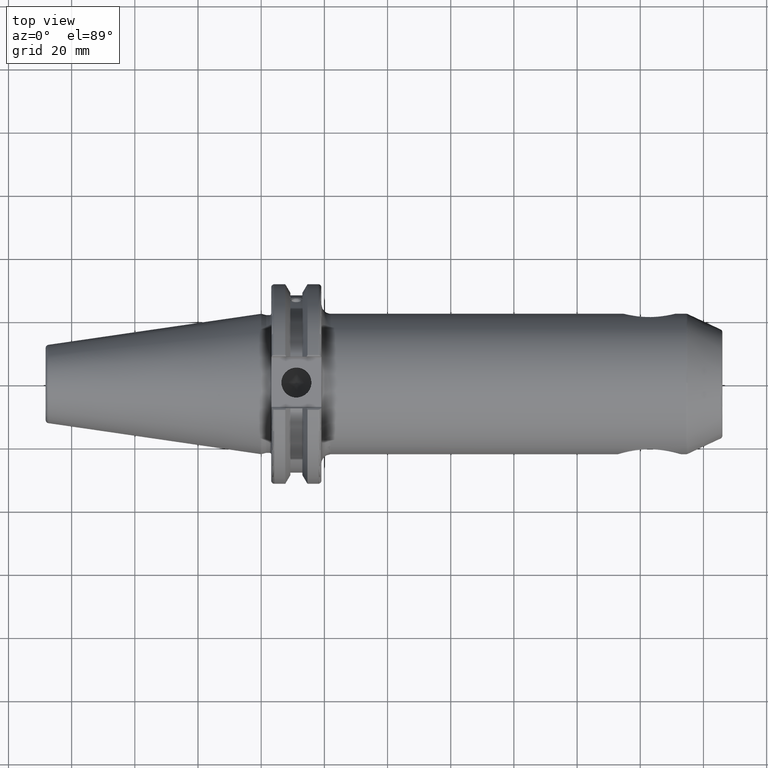
[diagram: clean part render]
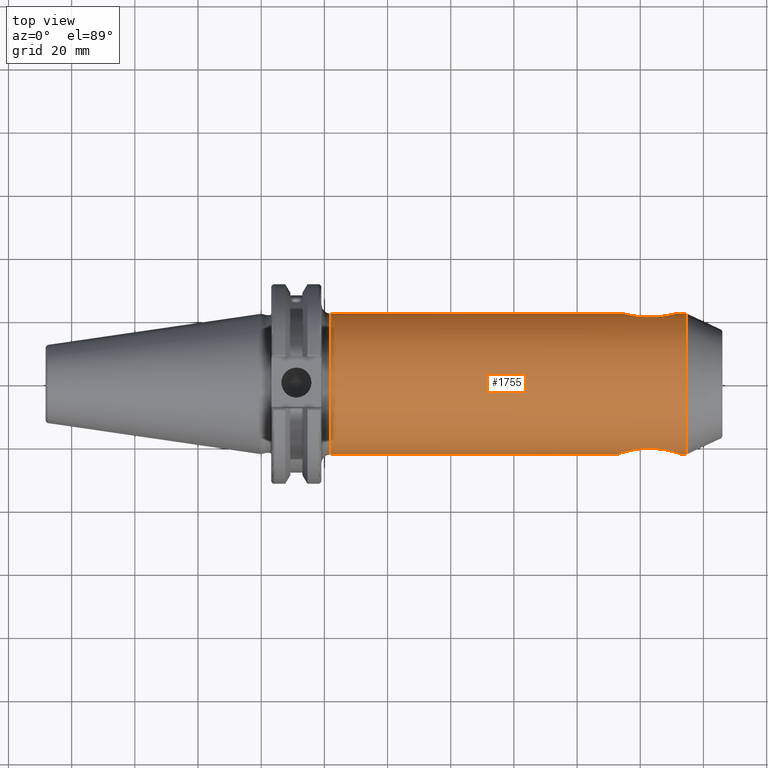
[diagram: same view with one face highlighted and labeled with its STEP entity id]
A machine part, top view. The second image highlights one B-rep face of the part: STEP entity #1755.
In plain terms, the highlighted cylindrical surface (bore or boss wall) has radius 22.225 mm, axis along (1, 0, 0).
Its self-contained STEP definition (entity closure, byte-faithful):
#51=FACE_BOUND('',#557,.T.);
#92=LINE('',#2820,#183);
#93=LINE('',#2822,#184);
#183=VECTOR('',#2162,22.225);
#184=VECTOR('',#2163,22.225);
#272=CYLINDRICAL_SURFACE('',#1893,22.225);
#322=CIRCLE('',#1890,22.225);
#323=CIRCLE('',#1891,22.225);
#324=CIRCLE('',#1892,22.225);
#325=CIRCLE('',#1894,22.225);
#326=CIRCLE('',#1895,22.225);
#327=CIRCLE('',#1896,22.225);
#463=FACE_OUTER_BOUND('',#556,.T.);
#556=EDGE_LOOP('',(#1243,#1244,#1245,#1246,#1247,#1248,#1249,#1250,#1251,
#1252,#1253,#1254,#1255));
#557=EDGE_LOOP('',(#1256,#1257));
#651=B_SPLINE_CURVE_WITH_KNOTS('',3,(#2621,#2622,#2623,#2624,#2625,#2626,
#2627,#2628,#2629,#2630,#2631,#2632,#2633,#2634),.UNSPECIFIED.,.F.,.F.,
(4,2,2,2,2,2,4),(0.,0.251022335495543,0.502044670991086,0.753067006486629,
1.00408934198217,1.21360063972312,1.42311193746407),.UNSPECIFIED.);
#652=B_SPLINE_CURVE_WITH_KNOTS('',3,(#2636,#2637,#2638,#2639,#2640,#2641,
#2642,#2643,#2644,#2645,#2646,#2647,#2648,#2649),.UNSPECIFIED.,.F.,.F.,
(4,2,2,2,2,2,4),(4.2693358123922,4.47884711013315,4.6883584078741,4.93938074336964,
5.19040307886519,5.44142541436073,5.69244774985627),.UNSPECIFIED.);
#653=B_SPLINE_CURVE_WITH_KNOTS('',3,(#2650,#2651,#2652,#2653,#2654,#2655,
#2656,#2657,#2658,#2659,#2660,#2661,#2662,#2663,#2664,#2665,#2666,#2667,
#2668,#2669,#2670,#2671,#2672,#2673,#2674,#2675),.UNSPECIFIED.,.F.,.F.,
(4,2,2,2,2,2,2,2,2,2,2,2,4),(1.42311193746407,1.63262323520502,1.84213453294596,
2.09315686844151,2.34417920393705,2.59520153943259,2.84622387492814,3.09724621042368,
3.34826854591922,3.59929088141477,3.85031321691031,4.05982451465126,4.2693358123922),
 .UNSPECIFIED.);
#656=B_SPLINE_CURVE_WITH_KNOTS('',3,(#2736,#2737,#2738,#2739,#2740,#2741,
#2742,#2743,#2744,#2745,#2746,#2747,#2748,#2749,#2750,#2751,#2752,#2753,
#2754,#2755,#2756,#2757,#2758,#2759,#2760,#2761),.UNSPECIFIED.,.F.,.F.,
(4,2,2,2,2,2,2,2,2,2,2,2,4),(0.,0.285706651693722,0.571413303387444,0.868206131903916,
1.16499896042039,1.46179178893686,1.75858461745333,2.04429126914705,2.32999792084078,
2.6157045725345,2.90141122422822,3.19820405274469,3.49499688126116),
 .UNSPECIFIED.);
#657=B_SPLINE_CURVE_WITH_KNOTS('',3,(#2762,#2763,#2764,#2765,#2766,#2767,
#2768,#2769,#2770,#2771),.UNSPECIFIED.,.F.,.F.,(4,2,2,2,4),(3.49499688126116,
3.79178970977764,4.08858253829411,4.37428918998783,4.65999584168155),
 .UNSPECIFIED.);
#695=VERTEX_POINT('',#2619);
#696=VERTEX_POINT('',#2620);
#697=VERTEX_POINT('',#2635);
#704=VERTEX_POINT('',#2733);
#705=VERTEX_POINT('',#2735);
#721=VERTEX_POINT('',#2812);
#722=VERTEX_POINT('',#2814);
#723=VERTEX_POINT('',#2816);
#724=VERTEX_POINT('',#2821);
#725=VERTEX_POINT('',#2823);
#726=VERTEX_POINT('',#2825);
#894=EDGE_CURVE('',#695,#696,#651,.T.);
#895=EDGE_CURVE('',#697,#695,#652,.T.);
#896=EDGE_CURVE('',#696,#697,#653,.T.);
#907=EDGE_CURVE('',#705,#704,#656,.T.);
#908=EDGE_CURVE('',#704,#705,#657,.T.);
#929=EDGE_CURVE('',#721,#722,#322,.T.);
#930=EDGE_CURVE('',#722,#723,#323,.T.);
#931=EDGE_CURVE('',#723,#721,#324,.T.);
#932=EDGE_CURVE('',#722,#697,#92,.T.);
#933=EDGE_CURVE('',#696,#724,#93,.T.);
#934=EDGE_CURVE('',#725,#724,#325,.T.);
#935=EDGE_CURVE('',#726,#725,#326,.T.);
#936=EDGE_CURVE('',#724,#726,#327,.T.);
#1243=ORIENTED_EDGE('',*,*,#931,.F.);
#1244=ORIENTED_EDGE('',*,*,#930,.F.);
#1245=ORIENTED_EDGE('',*,*,#932,.T.);
#1246=ORIENTED_EDGE('',*,*,#895,.T.);
#1247=ORIENTED_EDGE('',*,*,#894,.T.);
#1248=ORIENTED_EDGE('',*,*,#933,.T.);
#1249=ORIENTED_EDGE('',*,*,#934,.F.);
#1250=ORIENTED_EDGE('',*,*,#935,.F.);
#1251=ORIENTED_EDGE('',*,*,#936,.F.);
#1252=ORIENTED_EDGE('',*,*,#933,.F.);
#1253=ORIENTED_EDGE('',*,*,#896,.T.);
#1254=ORIENTED_EDGE('',*,*,#932,.F.);
#1255=ORIENTED_EDGE('',*,*,#929,.F.);
#1256=ORIENTED_EDGE('',*,*,#907,.T.);
#1257=ORIENTED_EDGE('',*,*,#908,.T.);
#1755=ADVANCED_FACE('',(#463,#51),#272,.T.);
#1890=AXIS2_PLACEMENT_3D('',#2815,#2154,#2155);
#1891=AXIS2_PLACEMENT_3D('',#2817,#2156,#2157);
#1892=AXIS2_PLACEMENT_3D('',#2818,#2158,#2159);
#1893=AXIS2_PLACEMENT_3D('',#2819,#2160,#2161);
#1894=AXIS2_PLACEMENT_3D('',#2824,#2164,#2165);
#1895=AXIS2_PLACEMENT_3D('',#2826,#2166,#2167);
#1896=AXIS2_PLACEMENT_3D('',#2827,#2168,#2169);
#2154=DIRECTION('center_axis',(1.,0.,0.));
#2155=DIRECTION('ref_axis',(0.,-1.,1.83697019872103E-16));
#2156=DIRECTION('center_axis',(1.,0.,0.));
#2157=DIRECTION('ref_axis',(0.,-1.,1.83697019872103E-16));
#2158=DIRECTION('center_axis',(1.,0.,0.));
#2159=DIRECTION('ref_axis',(0.,-1.,1.83697019872103E-16));
#2160=DIRECTION('center_axis',(1.,0.,0.));
#2161=DIRECTION('ref_axis',(0.,1.,0.));
#2162=DIRECTION('',(-1.,0.,0.));
#2163=DIRECTION('',(-1.,0.,0.));
#2164=DIRECTION('center_axis',(-1.,0.,0.));
#2165=DIRECTION('ref_axis',(0.,-1.,-1.22464679914735E-16));
#2166=DIRECTION('center_axis',(-1.,0.,0.));
#2167=DIRECTION('ref_axis',(0.,-1.,-1.22464679914735E-16));
#2168=DIRECTION('center_axis',(-1.,0.,0.));
#2169=DIRECTION('ref_axis',(0.,-1.,-1.22464679914735E-16));
#2619=CARTESIAN_POINT('',(122.9,-20.5429142136249,-8.48170387431961));
#2620=CARTESIAN_POINT('',(112.9,-22.225,-3.02622329249023E-15));
#2621=CARTESIAN_POINT('Ctrl Pts',(122.9,-20.5429142136249,-8.48170387431961));
#2622=CARTESIAN_POINT('Ctrl Pts',(122.063258881682,-20.5429142136249,-8.48170387431961));
#2623=CARTESIAN_POINT('Ctrl Pts',(121.20323399114,-20.5793750899531,-8.39511661671729));
#2624=CARTESIAN_POINT('Ctrl Pts',(119.516324699227,-20.7235339420118,-8.03267098530732));
#2625=CARTESIAN_POINT('Ctrl Pts',(118.689402666585,-20.8310615424678,-7.75692002051757));
#2626=CARTESIAN_POINT('Ctrl Pts',(117.141814343029,-21.0905670050855,-7.0207509706169));
#2627=CARTESIAN_POINT('Ctrl Pts',(116.41982271821,-21.2424011055724,-6.55977327389368));
#2628=CARTESIAN_POINT('Ctrl Pts',(115.14200928808,-21.5484351250174,-5.47130459497775));
#2629=CARTESIAN_POINT('Ctrl Pts',(114.586027935836,-21.7022357241486,-4.843888684673));
#2630=CARTESIAN_POINT('Ctrl Pts',(113.764596777771,-21.9443598669959,-3.56984161148491));
#2631=CARTESIAN_POINT('Ctrl Pts',(113.437021880634,-22.0484008786661,-2.88770634190615));
#2632=CARTESIAN_POINT('Ctrl Pts',(113.004510308275,-22.1892381120218,-1.45208588003658));
#2633=CARTESIAN_POINT('Ctrl Pts',(112.9,-22.225,-0.69837099246983));
#2634=CARTESIAN_POINT('Ctrl Pts',(112.9,-22.225,-3.33066907387547E-15));
#2635=CARTESIAN_POINT('',(132.9,-22.225,-3.02622329249023E-15));
#2636=CARTESIAN_POINT('Ctrl Pts',(132.9,-22.225,-2.77555756156289E-15));
#2637=CARTESIAN_POINT('Ctrl Pts',(132.9,-22.225,-0.698370992469828));
#2638=CARTESIAN_POINT('Ctrl Pts',(132.795489691725,-22.1892381120218,-1.45208588003657));
#2639=CARTESIAN_POINT('Ctrl Pts',(132.362978119366,-22.0484008786661,-2.88770634190615));
#2640=CARTESIAN_POINT('Ctrl Pts',(132.035403222229,-21.9443598669959,-3.56984161148491));
#2641=CARTESIAN_POINT('Ctrl Pts',(131.213972064164,-21.7022357241486,-4.843888684673));
#2642=CARTESIAN_POINT('Ctrl Pts',(130.65799071192,-21.5484351250174,-5.47130459497775));
#2643=CARTESIAN_POINT('Ctrl Pts',(129.38017728179,-21.2424011055724,-6.55977327389369));
#2644=CARTESIAN_POINT('Ctrl Pts',(128.658185656971,-21.0905670050855,-7.02075097061689));
#2645=CARTESIAN_POINT('Ctrl Pts',(127.110597333415,-20.8310615424678,-7.75692002051757));
#2646=CARTESIAN_POINT('Ctrl Pts',(126.283675300773,-20.7235339420118,-8.03267098530732));
#2647=CARTESIAN_POINT('Ctrl Pts',(124.59676600886,-20.5793750899531,-8.39511661671729));
#2648=CARTESIAN_POINT('Ctrl Pts',(123.736741118318,-20.5429142136249,-8.48170387431961));
#2649=CARTESIAN_POINT('Ctrl Pts',(122.9,-20.5429142136249,-8.48170387431961));
#2650=CARTESIAN_POINT('Ctrl Pts',(112.9,-22.225,-2.63677968348475E-15));
#2651=CARTESIAN_POINT('Ctrl Pts',(112.9,-22.225,0.698370992469824));
#2652=CARTESIAN_POINT('Ctrl Pts',(113.004510308275,-22.1892381120218,1.45208588003657));
#2653=CARTESIAN_POINT('Ctrl Pts',(113.437021880634,-22.0484008786661,2.88770634190614));
#2654=CARTESIAN_POINT('Ctrl Pts',(113.764596777771,-21.9443598669959,3.56984161148491));
#2655=CARTESIAN_POINT('Ctrl Pts',(114.586027935836,-21.7022357241486,4.843888684673));
#2656=CARTESIAN_POINT('Ctrl Pts',(115.14200928808,-21.5484351250174,5.47130459497774));
#2657=CARTESIAN_POINT('Ctrl Pts',(116.41982271821,-21.2424011055724,6.55977327389369));
#2658=CARTESIAN_POINT('Ctrl Pts',(117.141814343029,-21.0905670050855,7.0207509706169));
#2659=CARTESIAN_POINT('Ctrl Pts',(118.689402666585,-20.8310615424678,7.75692002051757));
#2660=CARTESIAN_POINT('Ctrl Pts',(119.516324699227,-20.7235339420118,8.03267098530732));
#2661=CARTESIAN_POINT('Ctrl Pts',(121.20323399114,-20.5793750899531,8.39511661671729));
#2662=CARTESIAN_POINT('Ctrl Pts',(122.063258881682,-20.5429142136249,8.48170387431961));
#2663=CARTESIAN_POINT('Ctrl Pts',(123.736741118318,-20.5429142136249,8.48170387431961));
#2664=CARTESIAN_POINT('Ctrl Pts',(124.59676600886,-20.5793750899531,8.39511661671729));
#2665=CARTESIAN_POINT('Ctrl Pts',(126.283675300773,-20.7235339420118,8.03267098530732));
#2666=CARTESIAN_POINT('Ctrl Pts',(127.110597333415,-20.8310615424678,7.75692002051757));
#2667=CARTESIAN_POINT('Ctrl Pts',(128.658185656971,-21.0905670050855,7.0207509706169));
#2668=CARTESIAN_POINT('Ctrl Pts',(129.38017728179,-21.2424011055724,6.55977327389369));
#2669=CARTESIAN_POINT('Ctrl Pts',(130.65799071192,-21.5484351250174,5.47130459497774));
#2670=CARTESIAN_POINT('Ctrl Pts',(131.213972064164,-21.7022357241486,4.843888684673));
#2671=CARTESIAN_POINT('Ctrl Pts',(132.035403222229,-21.9443598669959,3.56984161148491));
#2672=CARTESIAN_POINT('Ctrl Pts',(132.362978119366,-22.0484008786661,2.88770634190614));
#2673=CARTESIAN_POINT('Ctrl Pts',(132.795489691725,-22.1892381120218,1.45208588003657));
#2674=CARTESIAN_POINT('Ctrl Pts',(132.9,-22.225,0.698370992469822));
#2675=CARTESIAN_POINT('Ctrl Pts',(132.9,-22.225,-3.05311331771918E-15));
#2733=CARTESIAN_POINT('',(114.65,22.225,1.01033360929657E-15));
#2735=CARTESIAN_POINT('',(122.9,21.0640818382873,-7.0890818382873));
#2736=CARTESIAN_POINT('Ctrl Pts',(122.9,21.0640818382873,-7.0890818382873));
#2737=CARTESIAN_POINT('Ctrl Pts',(123.852355505646,21.0640818382873,-7.0890818382873));
#2738=CARTESIAN_POINT('Ctrl Pts',(124.877447206829,21.1172822160691,-6.93706939600736));
#2739=CARTESIAN_POINT('Ctrl Pts',(126.805103114522,21.3165094684298,-6.29833098617763));
#2740=CARTESIAN_POINT('Ctrl Pts',(127.707968376249,21.4600099475821,-5.81172811466359));
#2741=CARTESIAN_POINT('Ctrl Pts',(129.219153578054,21.7469359800464,-4.62679965530441));
#2742=CARTESIAN_POINT('Ctrl Pts',(129.925233976879,21.9114714688491,-3.83129789219669));
#2743=CARTESIAN_POINT('Ctrl Pts',(130.891559929377,22.1526075235609,-2.01331009728329));
#2744=CARTESIAN_POINT('Ctrl Pts',(131.15,22.225,-0.98930942838824));
#2745=CARTESIAN_POINT('Ctrl Pts',(131.15,22.225,0.98930942838824));
#2746=CARTESIAN_POINT('Ctrl Pts',(130.891559929377,22.1526075235609,2.01331009728329));
#2747=CARTESIAN_POINT('Ctrl Pts',(129.925233976879,21.9114714688491,3.83129789219669));
#2748=CARTESIAN_POINT('Ctrl Pts',(129.219153578054,21.7469359800464,4.62679965530441));
#2749=CARTESIAN_POINT('Ctrl Pts',(127.707968376249,21.4600099475821,5.81172811466359));
#2750=CARTESIAN_POINT('Ctrl Pts',(126.805103114522,21.3165094684298,6.29833098617763));
#2751=CARTESIAN_POINT('Ctrl Pts',(124.877447206829,21.1172822160691,6.93706939600736));
#2752=CARTESIAN_POINT('Ctrl Pts',(123.852355505646,21.0640818382873,7.08908183828731));
#2753=CARTESIAN_POINT('Ctrl Pts',(121.947644494354,21.0640818382873,7.08908183828731));
#2754=CARTESIAN_POINT('Ctrl Pts',(120.922552793171,21.1172822160691,6.93706939600738));
#2755=CARTESIAN_POINT('Ctrl Pts',(118.994896885478,21.3165094684298,6.29833098617765));
#2756=CARTESIAN_POINT('Ctrl Pts',(118.092031623751,21.4600099475821,5.81172811466358));
#2757=CARTESIAN_POINT('Ctrl Pts',(116.580846421946,21.7469359800464,4.62679965530441));
#2758=CARTESIAN_POINT('Ctrl Pts',(115.874766023121,21.9114714688491,3.83129789219669));
#2759=CARTESIAN_POINT('Ctrl Pts',(114.908440070623,22.1526075235609,2.01331009728329));
#2760=CARTESIAN_POINT('Ctrl Pts',(114.65,22.225,0.989309428388244));
#2761=CARTESIAN_POINT('Ctrl Pts',(114.65,22.225,9.71445146547012E-16));
#2762=CARTESIAN_POINT('Ctrl Pts',(114.65,22.225,6.93889390390723E-16));
#2763=CARTESIAN_POINT('Ctrl Pts',(114.65,22.225,-0.989309428388243));
#2764=CARTESIAN_POINT('Ctrl Pts',(114.908440070623,22.1526075235609,-2.01331009728329));
#2765=CARTESIAN_POINT('Ctrl Pts',(115.874766023121,21.9114714688491,-3.83129789219669));
#2766=CARTESIAN_POINT('Ctrl Pts',(116.580846421946,21.7469359800464,-4.62679965530441));
#2767=CARTESIAN_POINT('Ctrl Pts',(118.092031623751,21.4600099475821,-5.81172811466359));
#2768=CARTESIAN_POINT('Ctrl Pts',(118.994896885478,21.3165094684298,-6.29833098617765));
#2769=CARTESIAN_POINT('Ctrl Pts',(120.922552793171,21.1172822160691,-6.93706939600737));
#2770=CARTESIAN_POINT('Ctrl Pts',(121.947644494354,21.0640818382873,-7.0890818382873));
#2771=CARTESIAN_POINT('Ctrl Pts',(122.9,21.0640818382873,-7.0890818382873));
#2812=CARTESIAN_POINT('',(134.573256677695,-2.72177751110499E-15,22.225));
#2814=CARTESIAN_POINT('',(134.573256677695,-22.225,-2.72177751110499E-15));
#2815=CARTESIAN_POINT('Origin',(134.573256677695,0.,0.));
#2816=CARTESIAN_POINT('',(134.573256677695,22.225,-1.3608887555525E-15));
#2817=CARTESIAN_POINT('Origin',(134.573256677695,0.,0.));
#2818=CARTESIAN_POINT('Origin',(134.573256677695,0.,0.));
#2819=CARTESIAN_POINT('Origin',(76.9224756701688,0.,0.));
#2820=CARTESIAN_POINT('',(76.9224756701688,-22.225,-2.72177751110499E-15));
#2821=CARTESIAN_POINT('',(22.05,-22.225,-2.72177751110499E-15));
#2822=CARTESIAN_POINT('',(76.9224756701688,-22.225,-2.72177751110499E-15));
#2823=CARTESIAN_POINT('',(22.05,-2.72177751110499E-15,-22.225));
#2824=CARTESIAN_POINT('Origin',(22.05,0.,0.));
#2825=CARTESIAN_POINT('',(22.05,22.225,0.));
#2826=CARTESIAN_POINT('Origin',(22.05,0.,0.));
#2827=CARTESIAN_POINT('Origin',(22.05,0.,0.));